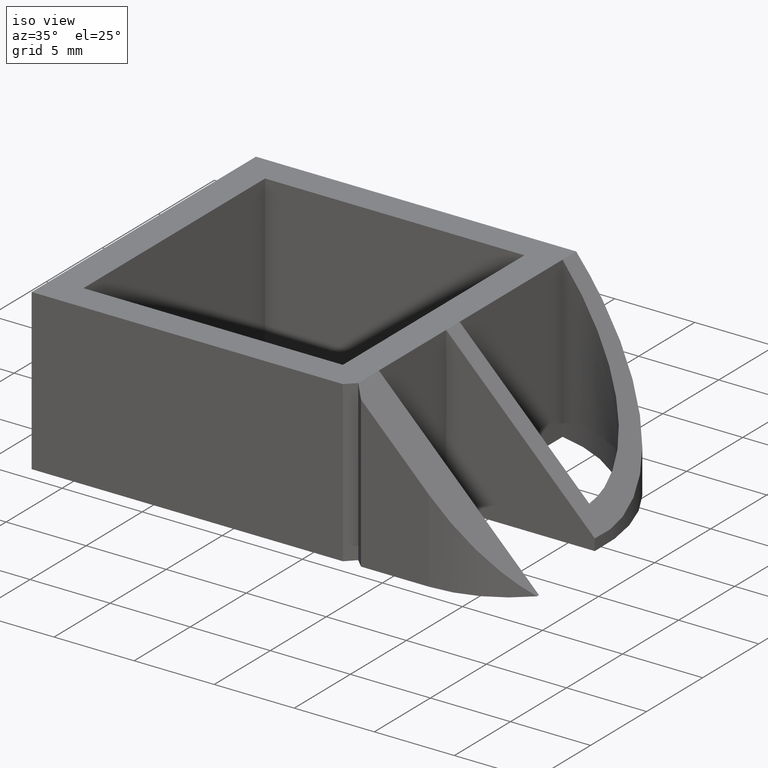
[diagram: clean part render]
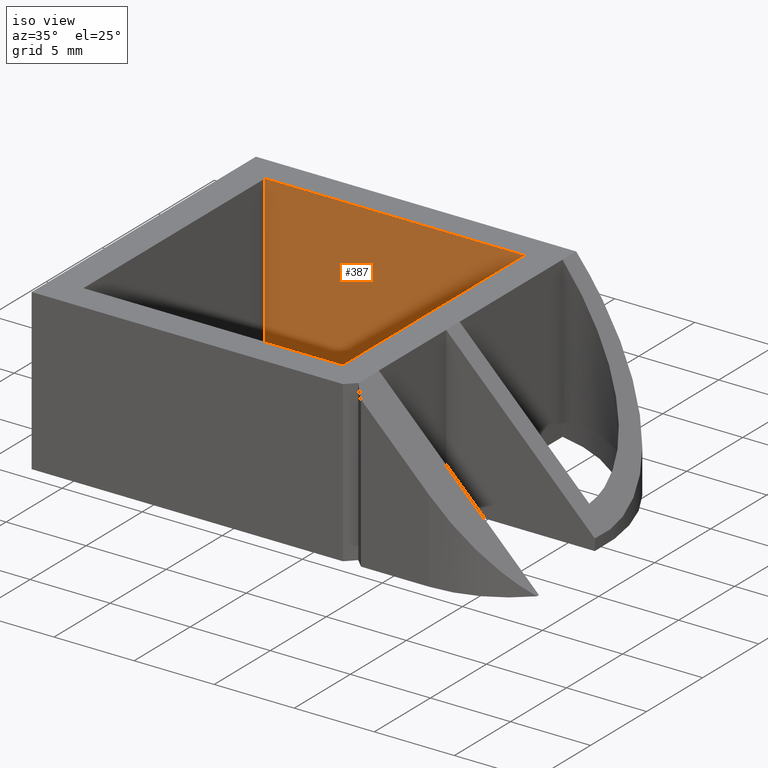
[diagram: same view with one face highlighted and labeled with its STEP entity id]
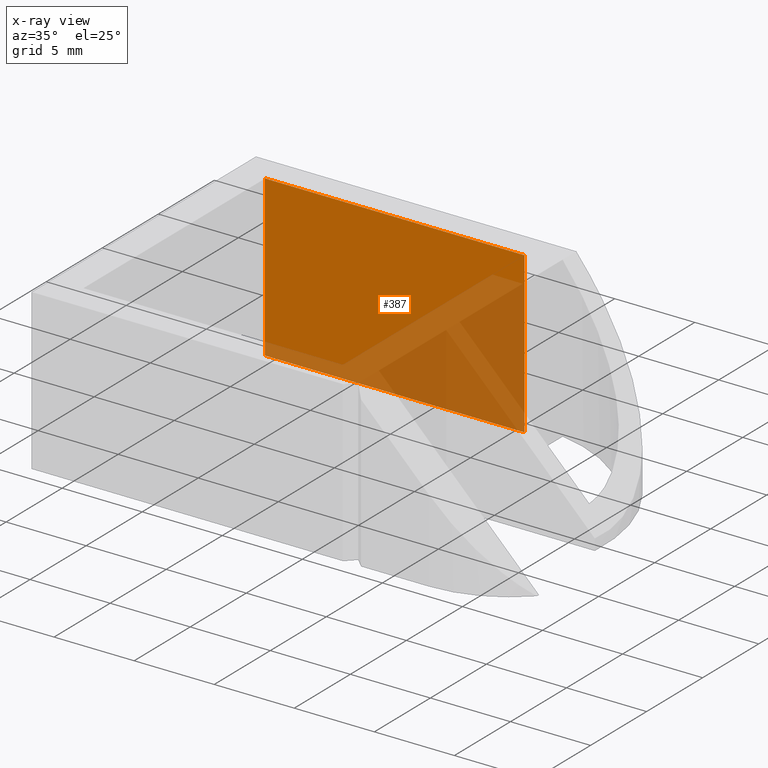
[diagram: x-ray of the same camera — body ghosted, the highlighted face saturated]
A machine part, iso view. The second image highlights one B-rep face of the part: STEP entity #387.
The next image is the same camera in x-ray: the body ghosted, the highlighted face saturated — about 39% of this face is hidden behind the body in this view.
In plain terms, the highlighted planar face has unit normal (-0, 1, 0).
Its self-contained STEP definition (entity closure, byte-faithful):
#348=CARTESIAN_POINT('',(-1.453995E-012,8.100000000000023,10.0));
#349=DIRECTION('',(-1.795055E-013,1.0,1.224647E-016));
#350=DIRECTION('',(1.0,1.795055E-013,0.0));
#351=AXIS2_PLACEMENT_3D('',#348,#349,#350);
#352=PLANE('',#351);
#353=CARTESIAN_POINT('',(-1.453995E-012,8.100000000000023,10.0));
#354=VERTEX_POINT('',#353);
#355=CARTESIAN_POINT('',(-1.453995E-012,8.100000000000023,0.0));
#356=VERTEX_POINT('',#355);
#357=CARTESIAN_POINT('',(-1.453995E-012,8.100000000000023,10.0));
#358=DIRECTION('',(0.0,0.0,-1.0));
#359=VECTOR('',#358,10.0);
#360=LINE('',#357,#359);
#361=EDGE_CURVE('',#354,#356,#360,.T.);
#362=ORIENTED_EDGE('',*,*,#361,.T.);
#363=CARTESIAN_POINT('',(16.199999999998592,8.100000000002931,0.0));
#364=VERTEX_POINT('',#363);
#365=CARTESIAN_POINT('',(-1.453995E-012,8.100000000000023,0.0));
#366=DIRECTION('',(1.0,1.794998E-013,0.0));
#367=VECTOR('',#366,16.200000000000045);
#368=LINE('',#365,#367);
#369=EDGE_CURVE('',#356,#364,#368,.T.);
#370=ORIENTED_EDGE('',*,*,#369,.T.);
#371=CARTESIAN_POINT('',(16.199999999998592,8.100000000002931,10.0));
#372=VERTEX_POINT('',#371);
#373=CARTESIAN_POINT('',(16.199999999998592,8.100000000002931,10.0));
#374=DIRECTION('',(0.0,0.0,-1.0));
#375=VECTOR('',#374,10.0);
#376=LINE('',#373,#375);
#377=EDGE_CURVE('',#372,#364,#376,.T.);
#378=ORIENTED_EDGE('',*,*,#377,.F.);
#379=CARTESIAN_POINT('',(-1.453995E-012,8.100000000000023,10.0));
#380=DIRECTION('',(1.0,1.794998E-013,0.0));
#381=VECTOR('',#380,16.200000000000045);
#382=LINE('',#379,#381);
#383=EDGE_CURVE('',#354,#372,#382,.T.);
#384=ORIENTED_EDGE('',*,*,#383,.F.);
#385=EDGE_LOOP('',(#362,#370,#378,#384));
#386=FACE_OUTER_BOUND('',#385,.T.);
#387=ADVANCED_FACE('',(#386),#352,.F.);